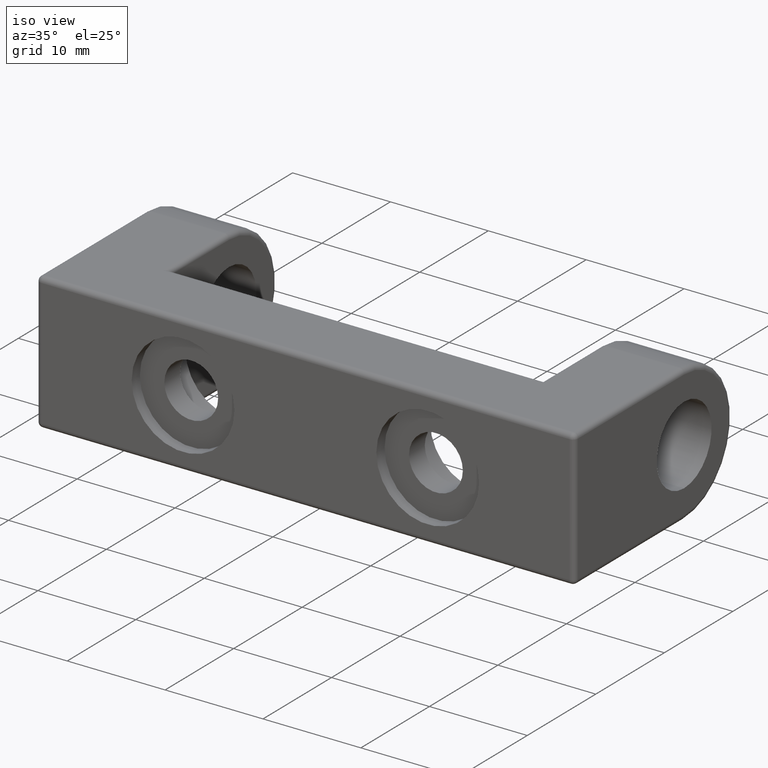
[diagram: clean part render]
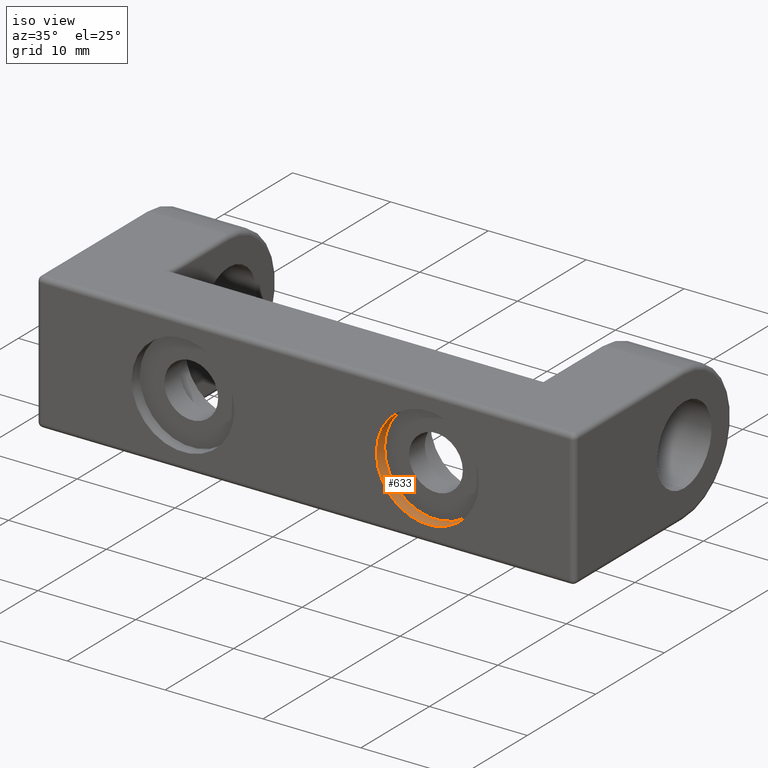
[diagram: same view with one face highlighted and labeled with its STEP entity id]
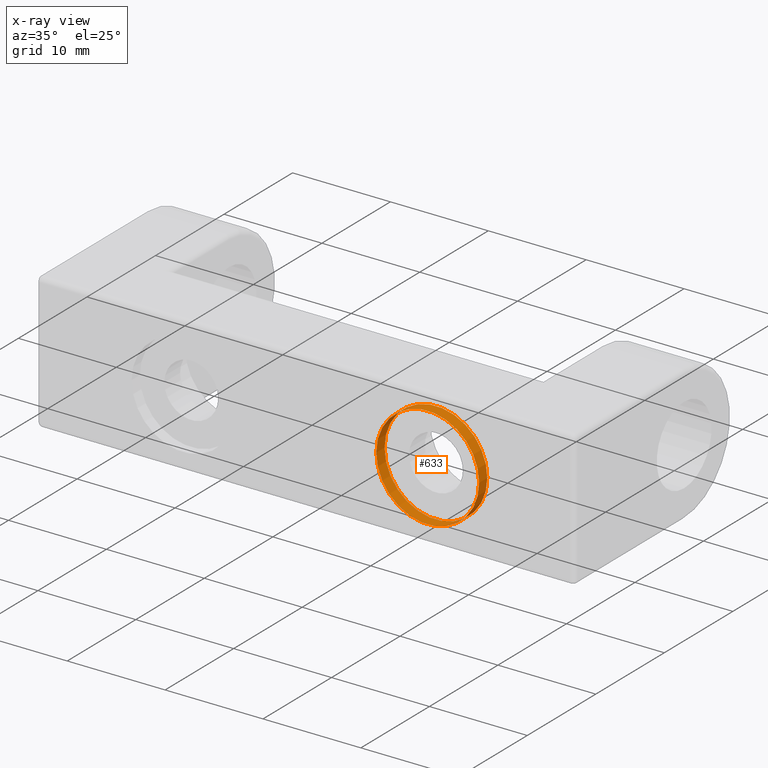
[diagram: x-ray of the same camera — body ghosted, the highlighted face saturated]
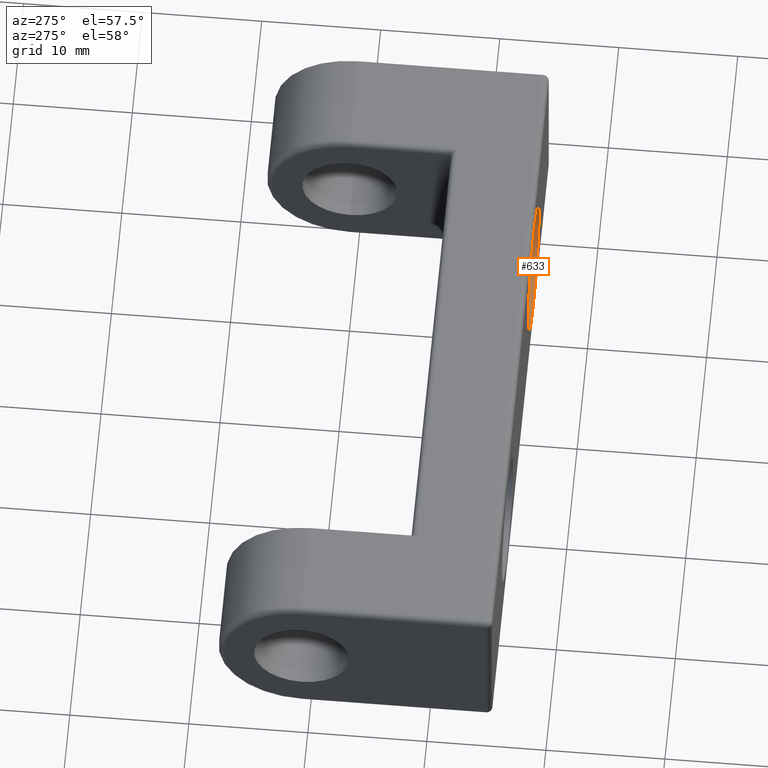
[diagram: same view with one face highlighted and labeled with its STEP entity id]
A machine part, iso view. The second image highlights one B-rep face of the part: STEP entity #633.
The next image is the same camera in x-ray: the body ghosted, the highlighted face saturated — about 0% of this face is hidden behind the body in this view.
A second angle (auxiliary view) of the same face is appended — the face is thin or edge-on in the first view.
In plain terms, the highlighted cylindrical surface (bore or boss wall) has radius 5.25 mm, axis along (0, 1, 0).
Its self-contained STEP definition (entity closure, byte-faithful):
#28=FACE_BOUND('',#141,.T.);
#87=FACE_OUTER_BOUND('',#140,.T.);
#140=EDGE_LOOP('',(#544));
#141=EDGE_LOOP('',(#545));
#200=CIRCLE('',#714,5.25);
#204=CIRCLE('',#721,5.25);
#320=VERTEX_POINT('',#1102);
#324=VERTEX_POINT('',#1113);
#402=EDGE_CURVE('',#320,#320,#200,.T.);
#406=EDGE_CURVE('',#324,#324,#204,.T.);
#544=ORIENTED_EDGE('',*,*,#406,.T.);
#545=ORIENTED_EDGE('',*,*,#402,.F.);
#594=CYLINDRICAL_SURFACE('',#720,5.25);
#633=ADVANCED_FACE('',(#87,#28),#594,.F.);
#714=AXIS2_PLACEMENT_3D('',#1103,#909,#910);
#720=AXIS2_PLACEMENT_3D('',#1112,#921,#922);
#721=AXIS2_PLACEMENT_3D('',#1114,#923,#924);
#909=DIRECTION('center_axis',(0.,1.,0.));
#910=DIRECTION('ref_axis',(-1.,0.,0.));
#921=DIRECTION('center_axis',(0.,1.,0.));
#922=DIRECTION('ref_axis',(-1.,0.,0.));
#923=DIRECTION('center_axis',(0.,1.,0.));
#924=DIRECTION('ref_axis',(-1.,0.,0.));
#1102=CARTESIAN_POINT('',(17.75,-15.25,6.4293956955236E-16));
#1103=CARTESIAN_POINT('Origin',(12.5,-15.25,0.));
#1112=CARTESIAN_POINT('Origin',(12.5,-15.25,0.));
#1113=CARTESIAN_POINT('',(17.75,-14.05,6.4293956955236E-16));
#1114=CARTESIAN_POINT('Origin',(12.5,-14.05,0.));